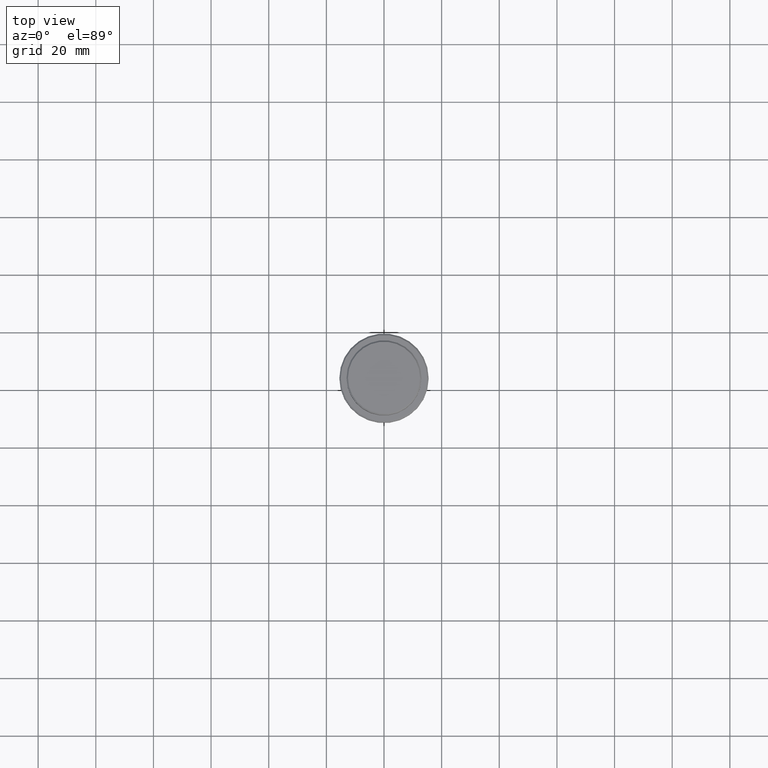
[diagram: clean part render]
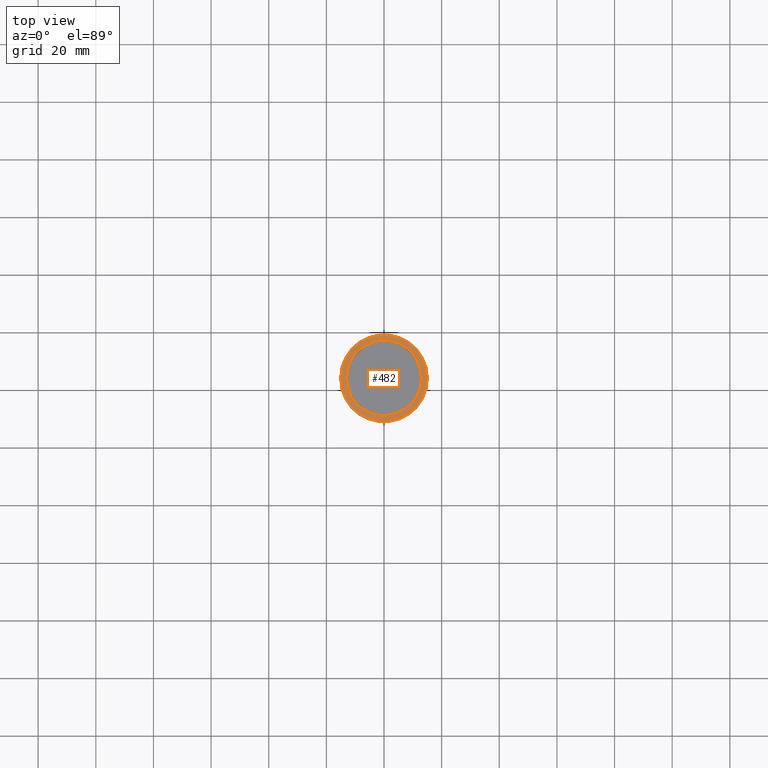
[diagram: same view with one face highlighted and labeled with its STEP entity id]
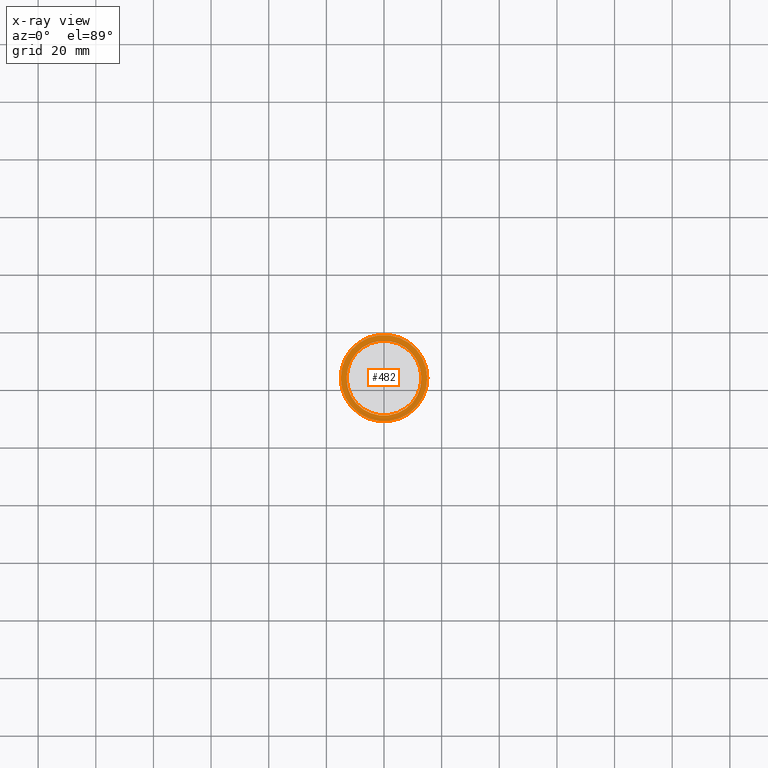
[diagram: x-ray of the same camera — body ghosted, the highlighted face saturated]
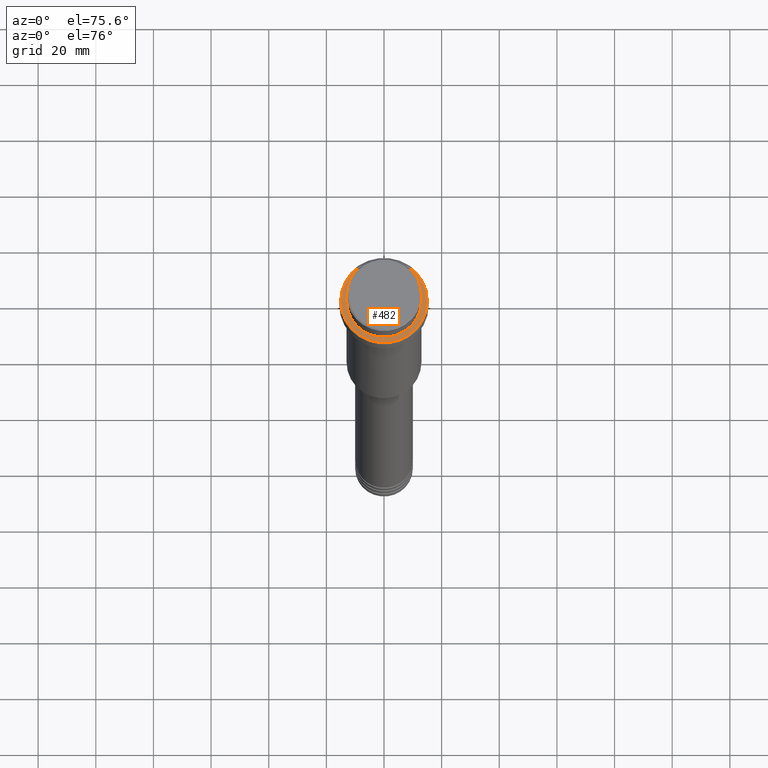
[diagram: same view with one face highlighted and labeled with its STEP entity id]
A machine part, top view. The second image highlights one B-rep face of the part: STEP entity #482.
The next image is the same camera in x-ray: the body ghosted, the highlighted face saturated — about 0% of this face is hidden behind the body in this view.
A second angle (auxiliary view) of the same face is appended — the face is thin or edge-on in the first view.
In plain terms, the highlighted planar face has unit normal (0, -0, 1).
Its self-contained STEP definition (entity closure, byte-faithful):
#12 = FACE_OUTER_BOUND ( 'NONE', #568, .T. ) ;
#47 = DIRECTION ( 'NONE',  ( -0.000000000000000000, -0.000000000000000000, 1.000000000000000000 ) ) ;
#65 = ORIENTED_EDGE ( 'NONE', *, *, #90, .T. ) ;
#75 = VERTEX_POINT ( 'NONE', #1386 ) ;
#82 = DIRECTION ( 'NONE',  ( 1.000000000000000000, 0.000000000000000000, 0.000000000000000000 ) ) ;
#90 = EDGE_CURVE ( 'NONE', #491, #709, #463, .T. ) ;
#104 = DIRECTION ( 'NONE',  ( 1.000000000000000000, 0.000000000000000000, 0.000000000000000000 ) ) ;
#150 = VERTEX_POINT ( 'NONE', #417 ) ;
#165 = CIRCLE ( 'NONE', #354, 12.99999999999999467 ) ;
#174 = ORIENTED_EDGE ( 'NONE', *, *, #755, .T. ) ;
#187 = DIRECTION ( 'NONE',  ( 0.000000000000000000, 0.000000000000000000, -1.000000000000000000 ) ) ;
#212 = PLANE ( 'NONE',  #968 ) ;
#233 = CIRCLE ( 'NONE', #538, 15.00000000000004086 ) ;
#292 = CARTESIAN_POINT ( 'NONE',  ( 0.000000000000000000, 0.000000000000000000, -9.000000000000001776 ) ) ;
#299 = CARTESIAN_POINT ( 'NONE',  ( 15.00000000000004086, 1.867586368699716531E-15, -9.000000000000001776 ) ) ;
#328 = CARTESIAN_POINT ( 'NONE',  ( -15.00000000000004086, 0.000000000000000000, -9.000000000000001776 ) ) ;
#354 = AXIS2_PLACEMENT_3D ( 'NONE', #1273, #187, #82 ) ;
#363 = EDGE_CURVE ( 'NONE', #75, #150, #165, .T. ) ;
#375 = CARTESIAN_POINT ( 'NONE',  ( 0.000000000000000000, 0.000000000000000000, -9.000000000000001776 ) ) ;
#417 = CARTESIAN_POINT ( 'NONE',  ( -12.99999999999999467, 1.592040838891558504E-15, -9.000000000000001776 ) ) ;
#436 = FACE_BOUND ( 'NONE', #588, .T. ) ;
#463 = CIRCLE ( 'NONE', #920, 15.00000000000004086 ) ;
#482 = ADVANCED_FACE ( 'NONE', ( #12, #436 ), #212, .T. ) ;
#491 = VERTEX_POINT ( 'NONE', #328 ) ;
#513 = DIRECTION ( 'NONE',  ( 1.000000000000000000, 0.000000000000000000, 0.000000000000000000 ) ) ;
#538 = AXIS2_PLACEMENT_3D ( 'NONE', #292, #619, #513 ) ;
#549 = DIRECTION ( 'NONE',  ( 0.000000000000000000, 0.000000000000000000, -1.000000000000000000 ) ) ;
#559 = AXIS2_PLACEMENT_3D ( 'NONE', #1094, #549, #104 ) ;
#568 = EDGE_LOOP ( 'NONE', ( #65, #174 ) ) ;
#588 = EDGE_LOOP ( 'NONE', ( #872, #1348 ) ) ;
#605 = CIRCLE ( 'NONE', #559, 12.99999999999999467 ) ;
#619 = DIRECTION ( 'NONE',  ( -0.000000000000000000, -0.000000000000000000, 1.000000000000000000 ) ) ;
#705 = DIRECTION ( 'NONE',  ( 1.000000000000000000, 0.000000000000000000, 0.000000000000000000 ) ) ;
#709 = VERTEX_POINT ( 'NONE', #299 ) ;
#755 = EDGE_CURVE ( 'NONE', #709, #491, #233, .T. ) ;
#864 = DIRECTION ( 'NONE',  ( 1.000000000000000000, 0.000000000000000000, 0.000000000000000000 ) ) ;
#872 = ORIENTED_EDGE ( 'NONE', *, *, #363, .T. ) ;
#920 = AXIS2_PLACEMENT_3D ( 'NONE', #375, #47, #705 ) ;
#968 = AXIS2_PLACEMENT_3D ( 'NONE', #1295, #1303, #864 ) ;
#1029 = EDGE_CURVE ( 'NONE', #150, #75, #605, .T. ) ;
#1094 = CARTESIAN_POINT ( 'NONE',  ( 0.000000000000000000, 0.000000000000000000, -9.000000000000001776 ) ) ;
#1273 = CARTESIAN_POINT ( 'NONE',  ( 0.000000000000000000, 0.000000000000000000, -9.000000000000001776 ) ) ;
#1295 = CARTESIAN_POINT ( 'NONE',  ( 0.000000000000000000, 12.49999999999999289, -9.000000000000001776 ) ) ;
#1303 = DIRECTION ( 'NONE',  ( 0.000000000000000000, -0.000000000000000000, 1.000000000000000000 ) ) ;
#1348 = ORIENTED_EDGE ( 'NONE', *, *, #1029, .T. ) ;
#1386 = CARTESIAN_POINT ( 'NONE',  ( 12.99999999999999467, 0.000000000000000000, -9.000000000000001776 ) ) ;